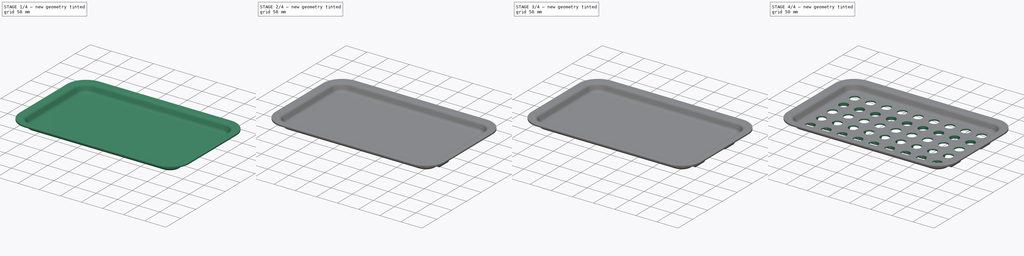
[diagram: build sequence overview — one tinted view per stage of 4, left to right]
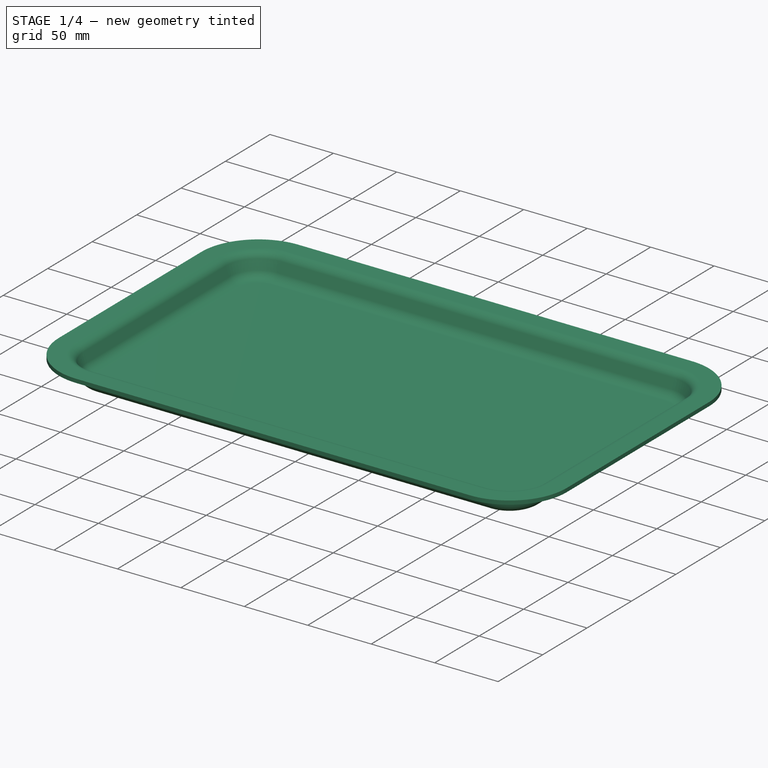
[diagram: stage 1 of 4 — iso view after this stage's code; geometry added in this stage tinted green]
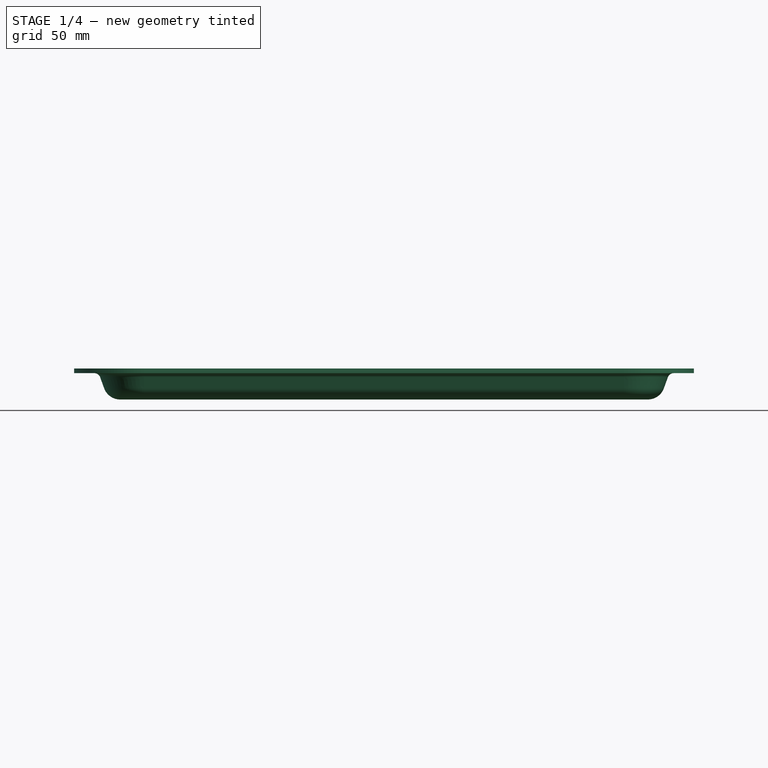
[diagram: stage 1 of 4 — front view after this stage's code; geometry added in this stage tinted green]
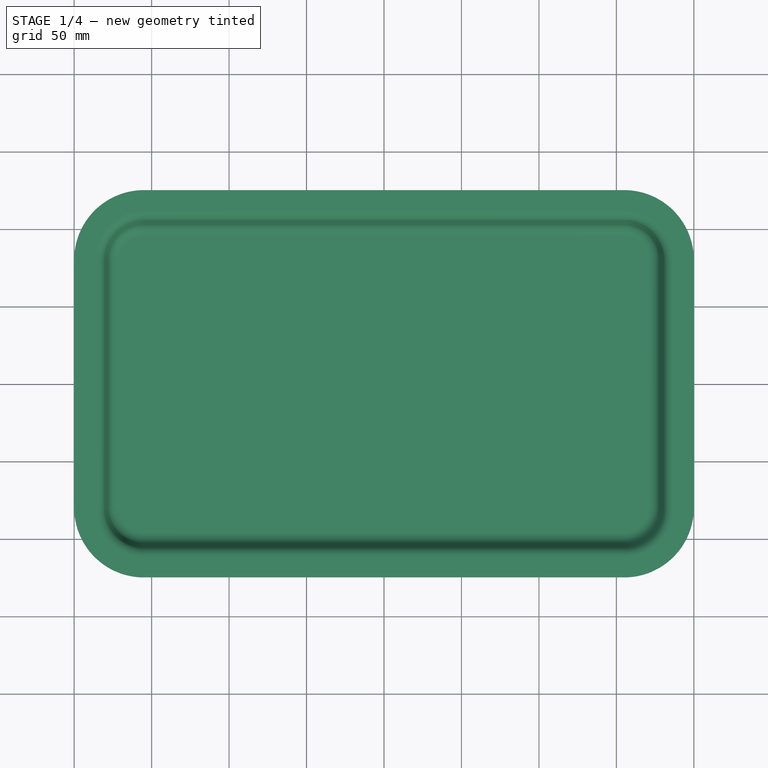
[diagram: stage 1 of 4 — top view after this stage's code; geometry added in this stage tinted green]
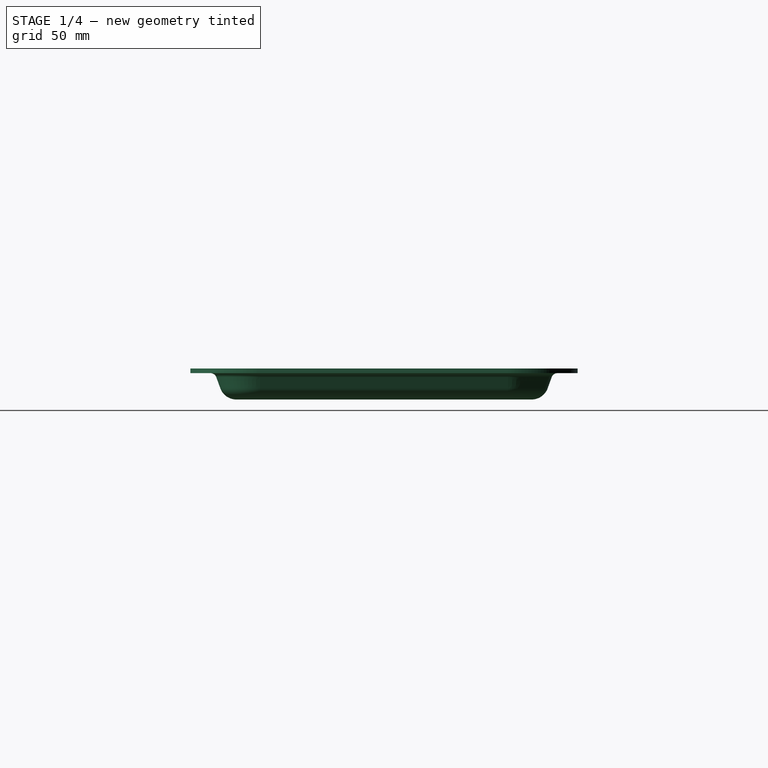
[diagram: stage 1 of 4 — right view after this stage's code; geometry added in this stage tinted green]
FCSTD DOCUMENT  (FreeCAD 1.1R41905 (Git))
Label: 24-SPO-52-PERF_TRAY
License: Creative Commons Attribution-NonCommercial-ShareAlike 4.0
LicenseURL: https://creativecommons.org/licenses/by-nc-sa/4.0/
objects: PartDesign::Pad×5, Sketcher::SketchObject×4, PartDesign::Mirrored×2, PartDesign::MultiTransform×2, PartDesign::LinearPattern×2, App::Point×1, PartDesign::AdditivePipe×1, App::TextDocument×1, PartDesign::Pocket×1, PartDesign::Body×1
note: 42 computed .brp shape members not serialized (recipe doc carries the construction recipe); baked Part::Feature solids carry a one-line shape summary decoded from their .brp

FEATURE [App::Point] Origin001  label="Origine"
  Role = Origin
FEATURE [Sketcher::SketchObject] Sketch  label="Contour"
  ArcFitTolerance = 1e-06
  AttachmentSupport = -> [Origin]
  ExternalTypes = [0]
  FullyConstrained = true
  MakeInternals = false
  MapMode = 5
  sketch-geometry (10):
    g0: LineSegment StartX=-200 StartY=80 StartZ=0 EndX=-200 EndY=-80 EndZ=0
    g1: LineSegment StartX=-155 StartY=-125 StartZ=0 EndX=155 EndY=-125 EndZ=0
    g2: LineSegment StartX=200 StartY=-80 StartZ=0 EndX=200 EndY=80 EndZ=0
    g3: LineSegment StartX=155 StartY=125 StartZ=0 EndX=-155 EndY=125 EndZ=0
    g4: ArcOfCircle CenterX=-155 CenterY=80 CenterZ=0 NormalX=0 NormalY=0 NormalZ=1 AngleXU=0 Radius=45 StartAngle=1.5708 EndAngle=3.14159
    g5: ArcOfCircle CenterX=-155 CenterY=-80 CenterZ=0 NormalX=0 NormalY=0 NormalZ=1 AngleXU=0 Radius=45 StartAngle=3.14159 EndAngle=4.71239
    g6: ArcOfCircle CenterX=155 CenterY=-80 CenterZ=0 NormalX=0 NormalY=0 NormalZ=1 AngleXU=0 Radius=45 StartAngle=4.71239 EndAngle=6.28319
    g7: ArcOfCircle CenterX=155 CenterY=80 CenterZ=0 NormalX=0 NormalY=0 NormalZ=1 AngleXU=0 Radius=45 StartAngle=0 EndAngle=1.5708
    g8: GeomPoint [constr] X=-200 Y=125 Z=0
    g9: GeomPoint [constr] X=200 Y=-125 Z=0
  constraints (23):
    c: Tangent(g0,g4) = -1.5708
    c: Tangent(g0,g5) = -1.5708
    c: Tangent(g1,g5) = -1.5708
    c: Tangent(g1,g6) = -1.5708
    c: Tangent(g2,g6) = -1.5708
    c: Tangent(g2,g7) = -1.5708
    c: Tangent(g3,g7) = -1.5708
    c: Tangent(g3,g4) = -1.5708
    c: Vertical(g0)
    c: Vertical(g2)
    c: Horizontal(g1)
    c: Horizontal(g3)
    c: Equal(g4,g5)
    c: Equal(g5,g6)
    c: Equal(g6,g7)
    c: PointOnObject(g8,g0)
    c: PointOnObject(g8,g3)
    c: PointOnObject(g9,g1)
    c: PointOnObject(g9,g2)
    c: Distance(g0,g2) = 400
    c: Distance(g1,g3) = 250
    c: Radius(g4) = 45
    c: Symmetric(g4,g6,g-1)
FEATURE [Sketcher::SketchObject] Sketch001  label="Profil"
  ArcFitTolerance = 1e-06
  AttachmentSupport = -> [Origin]
  ExternalGeometry = -> [Sketch]
  ExternalTypes = [0]
  FullyConstrained = true
  MakeInternals = false
  MapMode = 5
  Placement = pos=(0,0,0) rot=(1,0,0;1.5708rad)
  sketch-geometry (10):
    g0: LineSegment StartX=200 StartY=0 StartZ=0 EndX=187 EndY=0 EndZ=0
    g1: ArcOfCircle CenterX=187 CenterY=-7 CenterZ=0 NormalX=0 NormalY=0 NormalZ=1 AngleXU=0 Radius=7 StartAngle=1.5708 EndAngle=2.79253
    g2: LineSegment StartX=180.422 StartY=-4.60586 StartZ=0 EndX=177.827 EndY=-11.7362 EndZ=0
    g3: ArcOfCircle CenterX=170.309 CenterY=-9 CenterZ=0 NormalX=0 NormalY=0 NormalZ=1 AngleXU=0 Radius=8 StartAngle=4.71239 EndAngle=5.93412
    g4: LineSegment StartX=170.309 StartY=-17 StartZ=0 EndX=170.309 EndY=-20 EndZ=0
    g5: ArcOfCircle CenterX=170.309 CenterY=-9 CenterZ=0 NormalX=0 NormalY=0 NormalZ=1 AngleXU=0 Radius=11 StartAngle=4.71239 EndAngle=5.93412
    g6: LineSegment StartX=180.646 StartY=-12.7622 StartZ=0 EndX=183.241 EndY=-5.63192 EndZ=0
    g7: ArcOfCircle CenterX=187 CenterY=-7 CenterZ=0 NormalX=0 NormalY=0 NormalZ=1 AngleXU=0 Radius=4 StartAngle=1.5708 EndAngle=2.79253
    g8: LineSegment StartX=187 StartY=-3 StartZ=0 EndX=200 EndY=-3 EndZ=0
    g9: LineSegment StartX=200 StartY=-3 StartZ=0 EndX=200 EndY=0 EndZ=0
  constraints (24):
    c: Coincident(g0,g-3)
    c: Horizontal(g0)
    c: Tangent(g0,g1) = -1.5708
    c: Tangent(g1,g2) = -1.5708
    c: Tangent(g2,g3) = 1.5708
    c: Coincident(g3,g4)
    c: Perpendicular(g4,g5) = 1.5708
    c: Tangent(g5,g6) = -1.5708
    c: Tangent(g6,g7) = 1.5708
    c: Horizontal(g8)
    c: Coincident(g8,g9)
    c: Coincident(g9,g0)
    c: Tangent(g7,g8) = 1.5708
    c: Coincident(g3,g5)
    c: Coincident(g1,g7)
    c: Vertical(g9)
    c: Distance(g9,g9) = 3
    c: Parallel(g6,g2)
    c: Distance(g0,g0) = 13
    c: DistanceY(g4,g-1) = 20
    c: Perpendicular(g-1,g4)
    c: Radius(g5) = 11
    c: Radius(g1) = 7
    c: Angle(g2,g-2) = 0.349066
FEATURE [PartDesign::AdditivePipe] AdditivePipe
  AuxiliaryCurvilinear = true
  AuxiliarySpineTangent = false
  Binormal = (0,0,0)
  Mode = 0
  Profile = -> Sketch001
  Refine = true
  Spine = -> Sketch
  SpineTangent = false
  Suppressed = false
  Transformation = 0
  Transition = 0
FEATURE [PartDesign::Pad] Pad
  BaseFeature = -> AdditivePipe
  Direction = (0,0,1)
  Length = 3
  Length2 = 10
  Profile = -> AdditivePipe [Edge40,Edge140,Edge128,Edge58,Edge72,Edge86,Edge100,Edge114]
  Refine = true
  Reversed = true
  Suppressed = false
  Type = 0
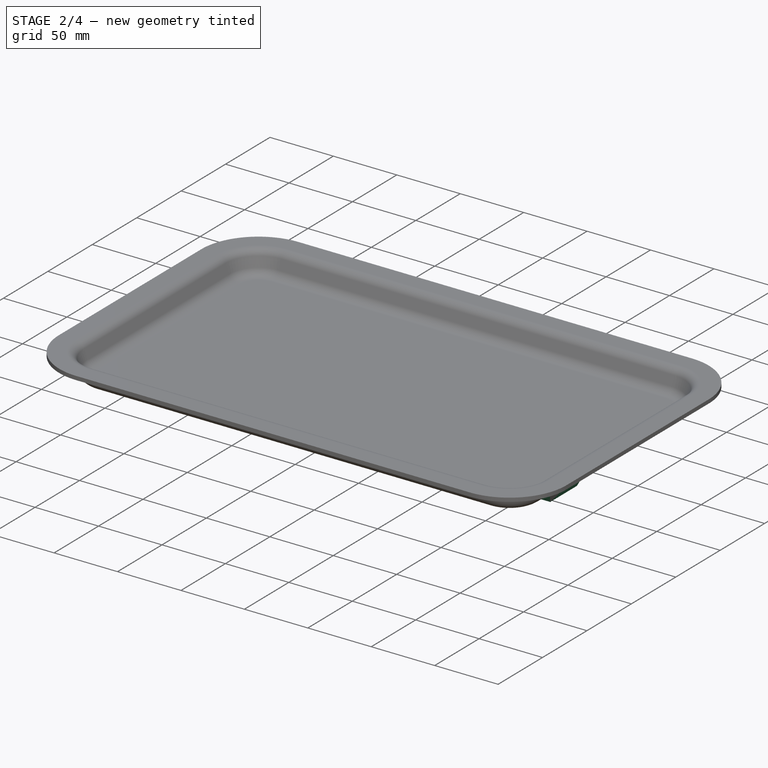
[diagram: stage 2 of 4 — iso view after this stage's code; geometry added in this stage tinted green]
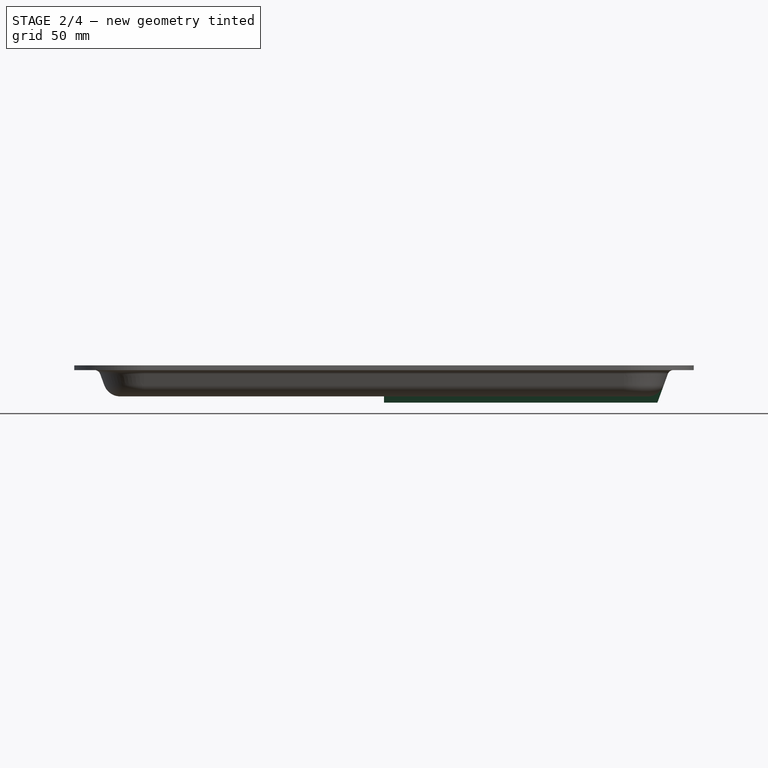
[diagram: stage 2 of 4 — front view after this stage's code; geometry added in this stage tinted green]
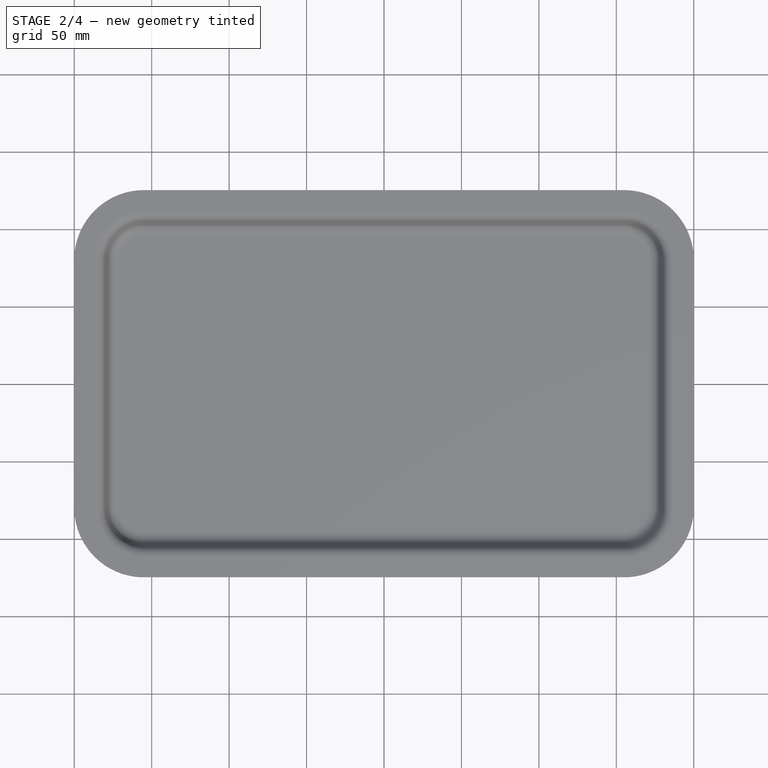
[diagram: stage 2 of 4 — top view after this stage's code; geometry added in this stage tinted green]
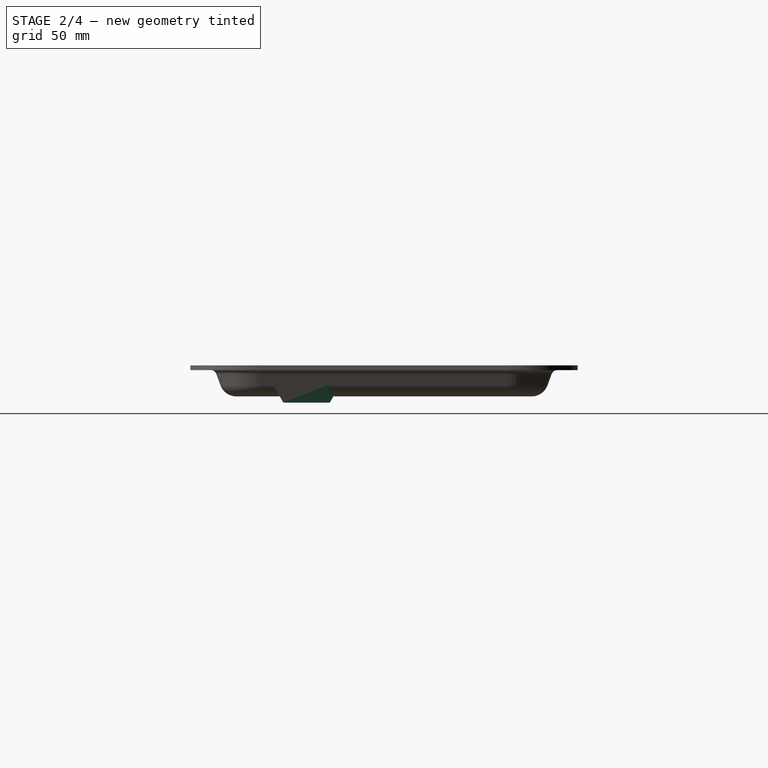
[diagram: stage 2 of 4 — right view after this stage's code; geometry added in this stage tinted green]
FEATURE [Sketcher::SketchObject] Sketch002
  ArcFitTolerance = 1e-06
  AttachmentSupport = -> [Origin]
  ExternalGeometry = -> [Pad]
  ExternalTypes = [0]
  FullyConstrained = true
  MakeInternals = false
  MapMode = 5
  Placement = pos=(0,0,0) rot=(0.57735,0.57735,0.57735;2.0944rad)
  sketch-geometry (5):
    g0: LineSegment StartX=-67.3094 StartY=-20 StartZ=0 EndX=-32.6906 EndY=-20 EndZ=0
    g1: LineSegment StartX=-32.6906 StartY=-20 StartZ=0 EndX=-35 EndY=-24 EndZ=0
    g2: LineSegment StartX=-35 StartY=-24 StartZ=0 EndX=-65 EndY=-24 EndZ=0
    g3: LineSegment StartX=-65 StartY=-24 StartZ=0 EndX=-67.3094 EndY=-20 EndZ=0
    g4: GeomPoint X=-50 Y=-24 Z=0
  constraints (13):
    c: Coincident(g0,g1)
    c: Coincident(g1,g2)
    c: Coincident(g2,g3)
    c: Coincident(g3,g0)
    c: Horizontal(g2)
    c: Angle(g-2,g3) = 0.523599
    c: Angle(g1,g-2) = 0.523599
    c: Symmetric(g2,g2,g4)
    c: Distance(g4,g-2) = 50
    c: Distance(g1,g-1) = 24
    c: DistanceX(g2,g2) = 30
    c: Horizontal(g0)
    c: PointOnObject(g0,g-3)
FEATURE [PartDesign::Pad] Pad001
  BaseFeature = -> Pad
  Direction = (1,0,0)
  Length = 10
  Length2 = 10
  Profile = -> Sketch002
  ReferenceAxis = -> Sketch002 [N_Axis]
  Refine = true
  Suppressed = false
  Type = 3
  UpToFace = -> Pad [Face31]
FEATURE [PartDesign::Pad] Pad002
  BaseFeature = -> Pad001
  Direction = (-0.300627,0.476871,-0.825965)
  Length = 3
  Length2 = 10
  Profile = -> Pad001 [Face60]
  ReferenceAxis = -> Pad001 [Edge150]
  Refine = true
  Reversed = true
  Suppressed = false
  Type = 5
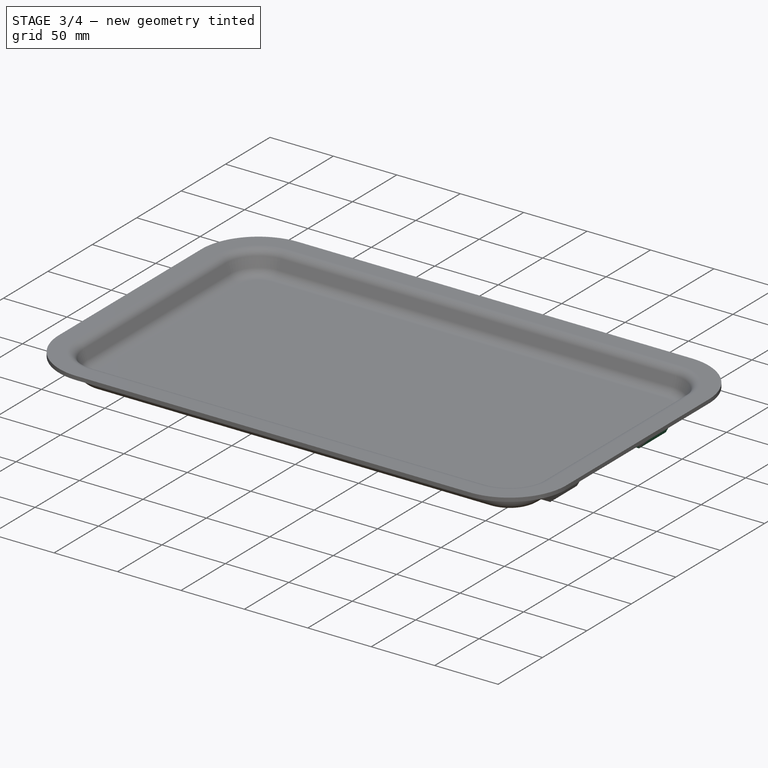
[diagram: stage 3 of 4 — iso view after this stage's code; geometry added in this stage tinted green]
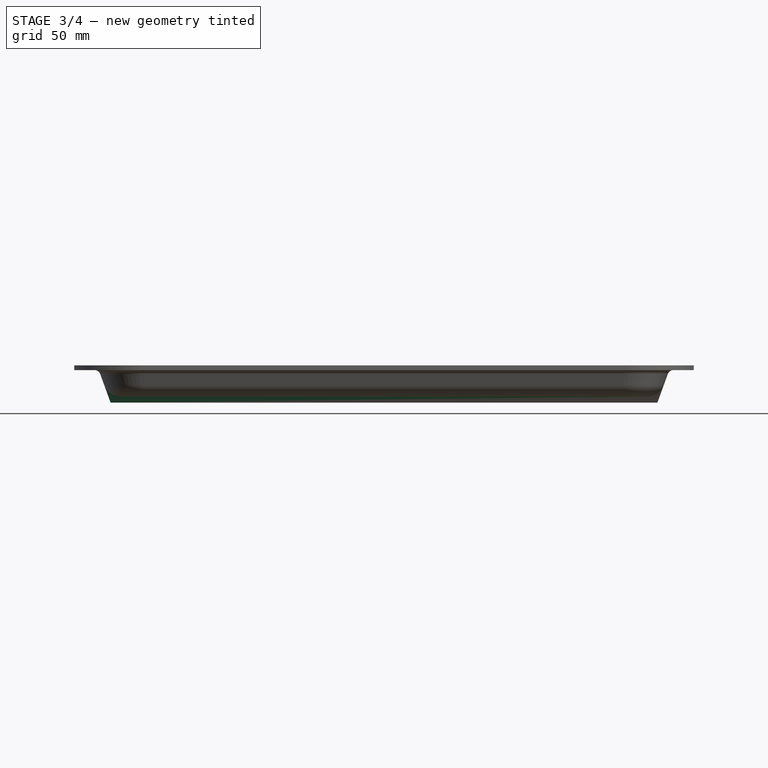
[diagram: stage 3 of 4 — front view after this stage's code; geometry added in this stage tinted green]
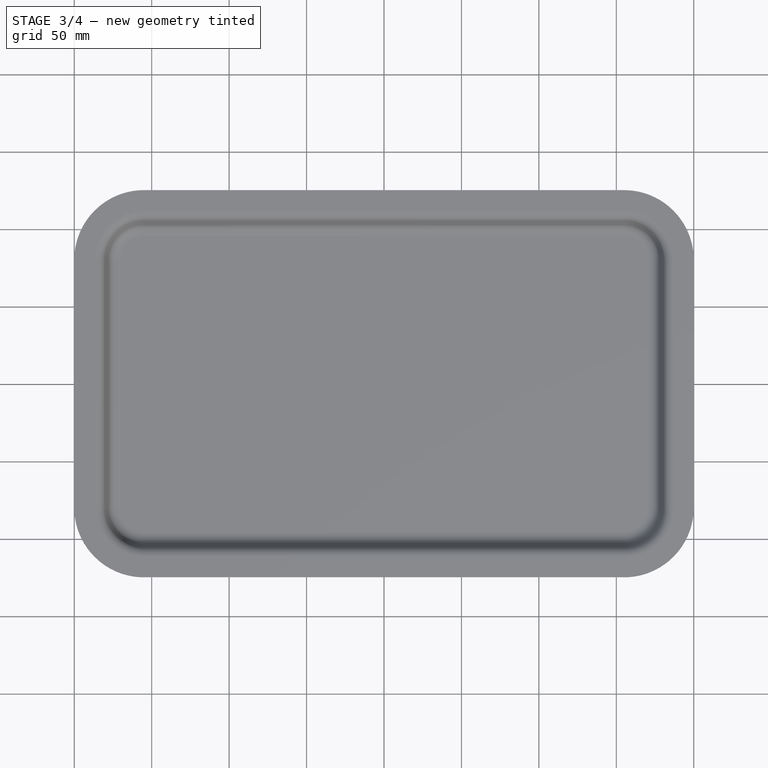
[diagram: stage 3 of 4 — top view after this stage's code; geometry added in this stage tinted green]
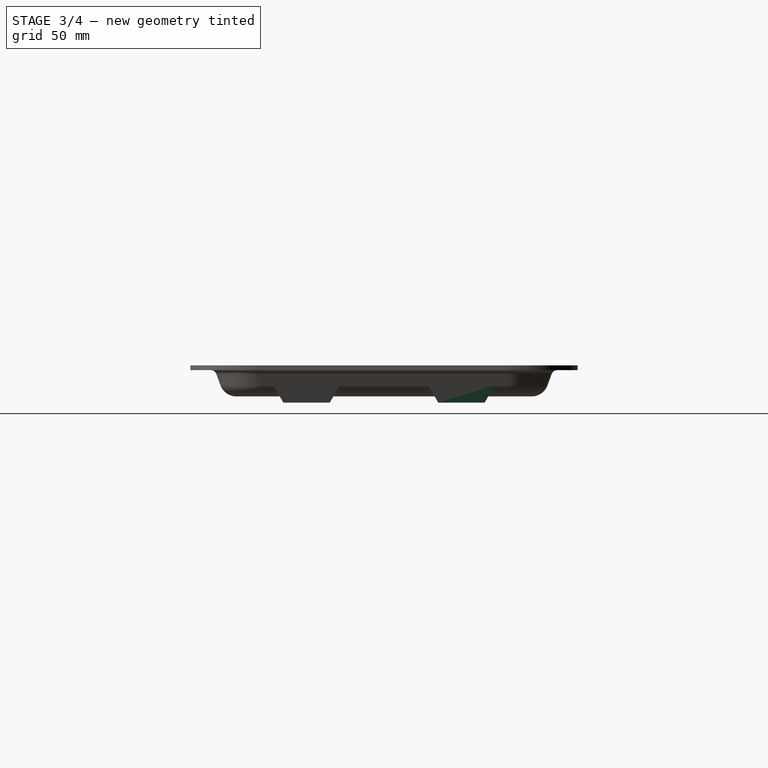
[diagram: stage 3 of 4 — right view after this stage's code; geometry added in this stage tinted green]
FEATURE [PartDesign::Pad] Pad003
  BaseFeature = -> Pad002
  Direction = (0,0.87,0.5)
  Length = 2
  Length2 = 10
  Profile = -> Pad002 [Face60]
  ReferenceAxis = -> Pad002 [Edge148]
  Refine = true
  Suppressed = false
  Type = 0
FEATURE [PartDesign::Pad] Pad004
  BaseFeature = -> Pad003
  Direction = (0,0.87,0.5)
  Length = 6
  Length2 = 10
  Profile = -> Pad003 [Face1]
  ReferenceAxis = -> Pad003 [Edge154]
  Refine = true
  Suppressed = false
  Type = 0
FEATURE [PartDesign::Mirrored] Mirrored
  MirrorPlane = -> Sketch002 [V_Axis]
  Refine = true
  Suppressed = false
  TransformMode = 0
FEATURE [PartDesign::Mirrored] Mirrored001
  MirrorPlane = -> YZ_Plane
  Refine = true
  Suppressed = false
  TransformMode = 0
FEATURE [PartDesign::MultiTransform] MultiTransform
  BaseFeature = -> Pad004
  Originals = -> [Pad001,Pad002,Pad003,Pad004]
  Refine = true
  Suppressed = false
  TransformMode = 0
  Transformations = -> [Mirrored,Mirrored001]
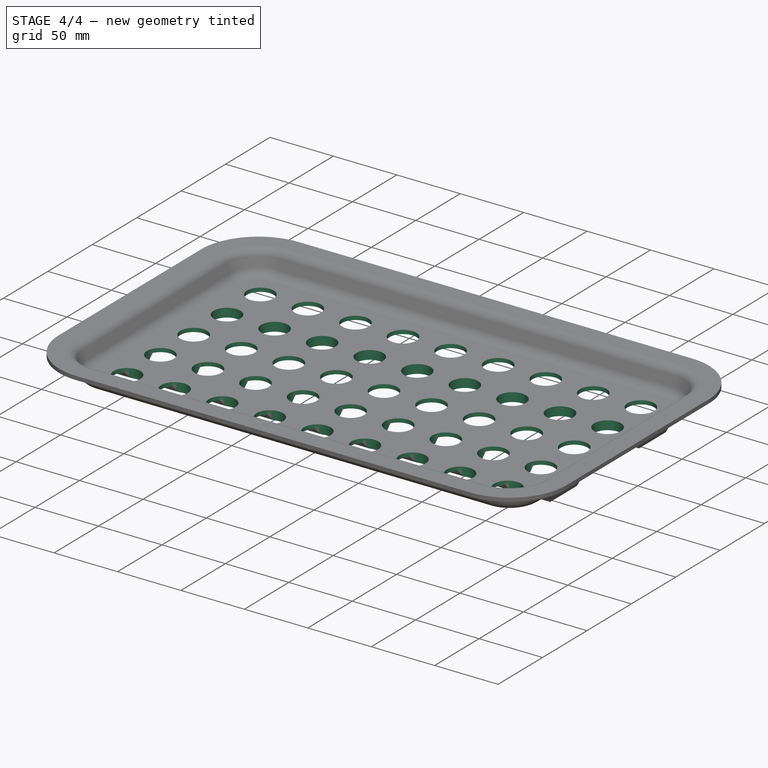
[diagram: stage 4 of 4 — iso view after this stage's code; geometry added in this stage tinted green]
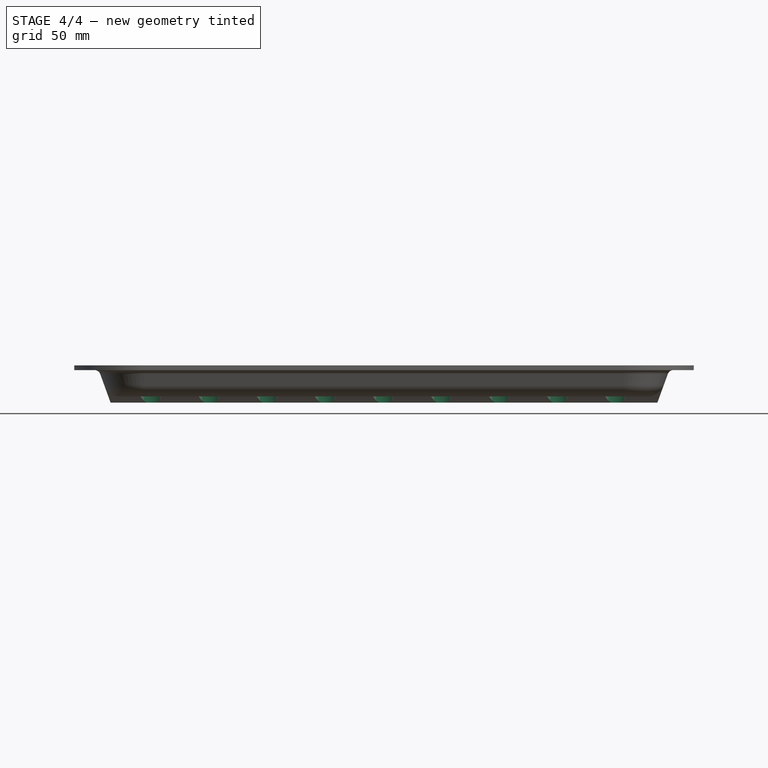
[diagram: stage 4 of 4 — front view after this stage's code; geometry added in this stage tinted green]
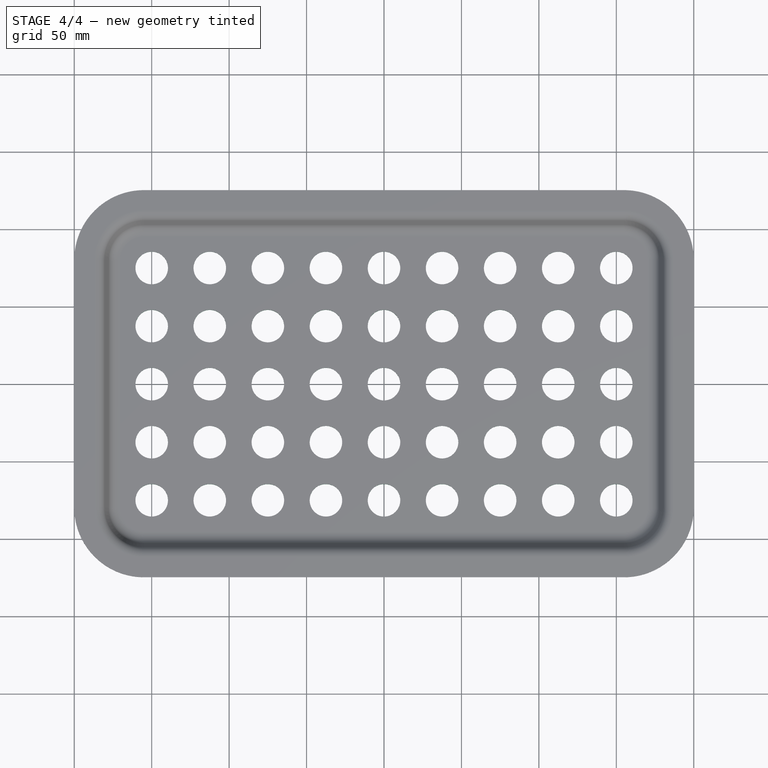
[diagram: stage 4 of 4 — top view after this stage's code; geometry added in this stage tinted green]
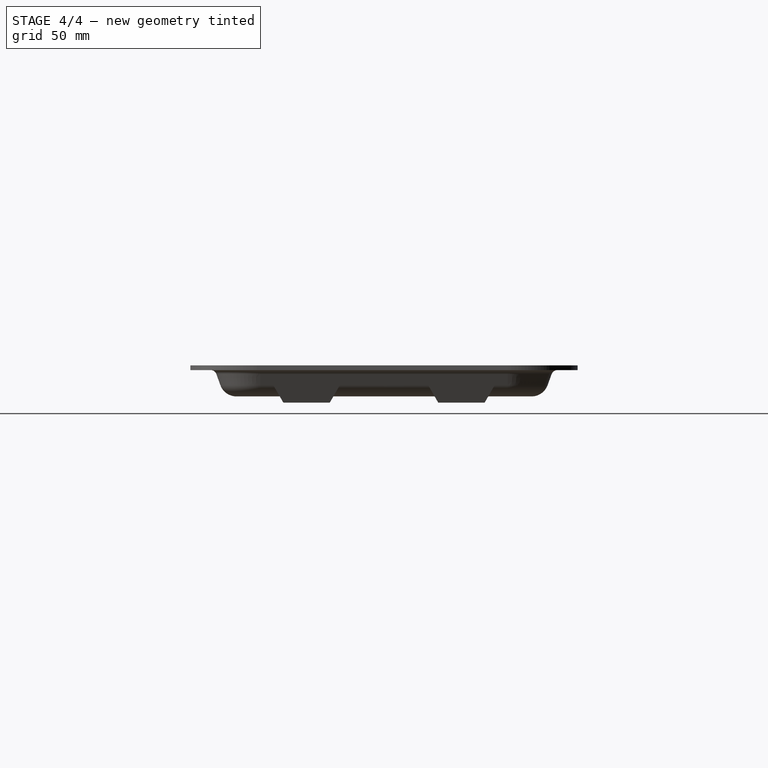
[diagram: stage 4 of 4 — right view after this stage's code; geometry added in this stage tinted green]
FEATURE [App::TextDocument] Text_document  label="README"
  Text = https://www.youtube.com/watch?v=R3AIRQz32rA\n\nPad en deux fois parce que le "to form" ne marche pas\n\n\nPlain Carbon Steel\n7800 kg/m3
FEATURE [Sketcher::SketchObject] Sketch003
  ArcFitTolerance = 1e-06
  AttachmentSupport = -> [Origin]
  ExternalGeometry = -> [Sketch]
  ExternalTypes = [0,0]
  FullyConstrained = true
  MakeInternals = false
  MapMode = 5
  sketch-geometry (1):
    g0: Circle CenterX=150 CenterY=-75 CenterZ=0 NormalX=0 NormalY=0 NormalZ=1 AngleXU=0 Radius=10.5
  constraints (3):
    c: Diameter(g0) = 21
    c: DistanceX(g0,g-4) = 50
    c: Distance(g0,g-3) = 50
FEATURE [PartDesign::Pocket] Pocket
  BaseFeature = -> MultiTransform
  Direction = (0,0,-1)
  Length = 5
  Length2 = 5
  Midplane = true
  Profile = -> Sketch003
  ReferenceAxis = -> Sketch003 [N_Axis]
  Refine = true
  Suppressed = false
  Type = 1
FEATURE [PartDesign::LinearPattern] LinearPattern
  Direction = -> X_Axis
  Length = 300
  Mode = 0
  Occurrences = 9
  Offset = 37.5
  Refine = true
  Reversed = true
  Suppressed = false
  TransformMode = 0
FEATURE [PartDesign::LinearPattern] LinearPattern001
  Direction = -> Y_Axis
  Length = 150
  Mode = 0
  Occurrences = 5
  Offset = 37.5
  Refine = true
  Suppressed = false
  TransformMode = 0
FEATURE [PartDesign::MultiTransform] MultiTransform001
  BaseFeature = -> Pocket
  Originals = -> [Pocket]
  Refine = true
  Suppressed = false
  TransformMode = 0
  Transformations = -> [LinearPattern,LinearPattern001]
FEATURE [PartDesign::Body] Body
  AllowCompound = false
  Group = -> [Sketch,Sketch001,AdditivePipe,Pad,Sketch002,Pad001,Pad002,Pad003,Pad004,MultiTransform,Mirrored,Mirrored001,Sketch003,Pocket,MultiTransform001,LinearPattern,LinearPattern001]
  Origin = -> Origin
  Tip = -> MultiTransform001
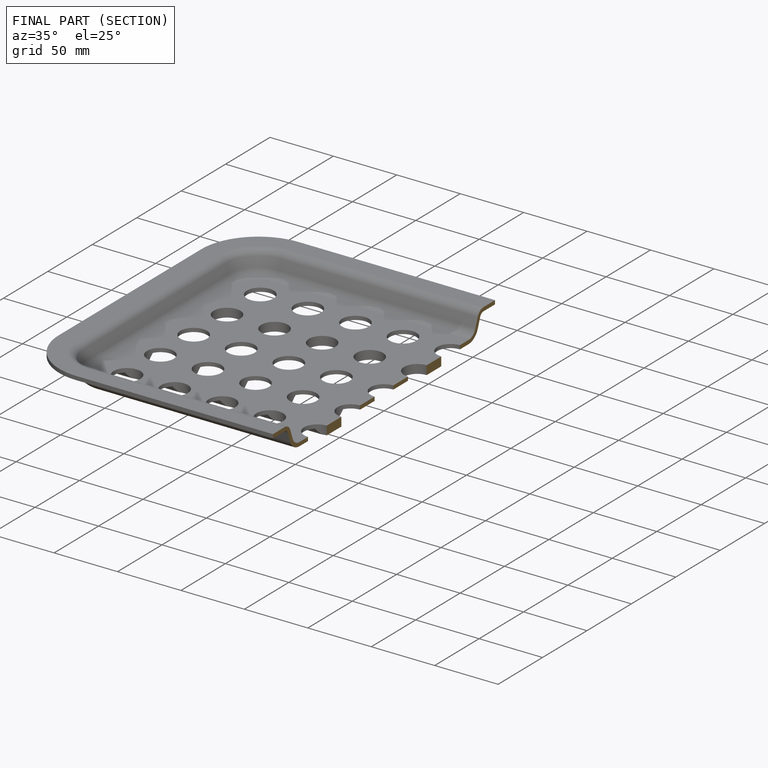
[diagram: finished part — half-section view (interior)]
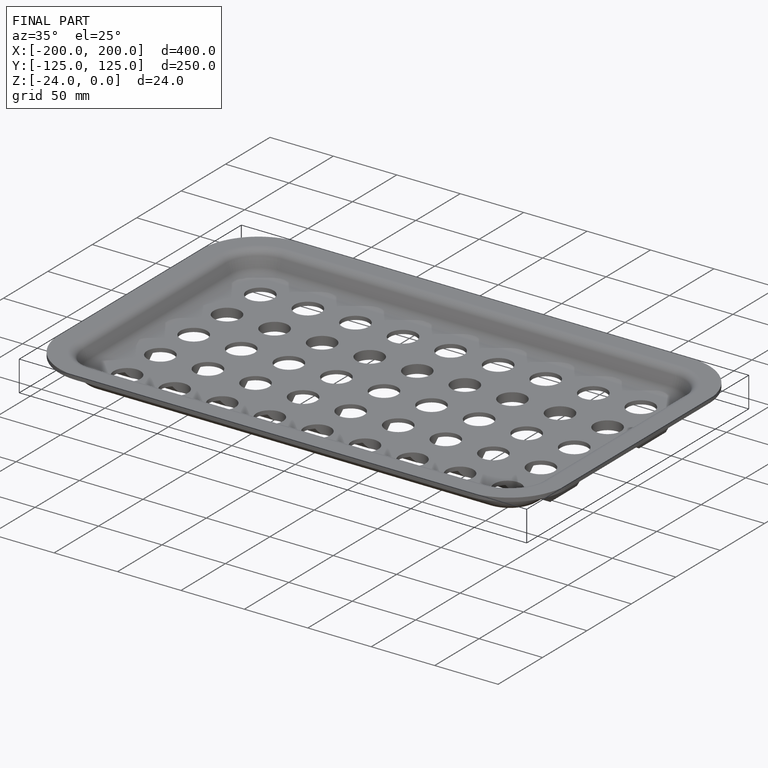
[diagram: finished part — iso view with bounding-box wireframe]
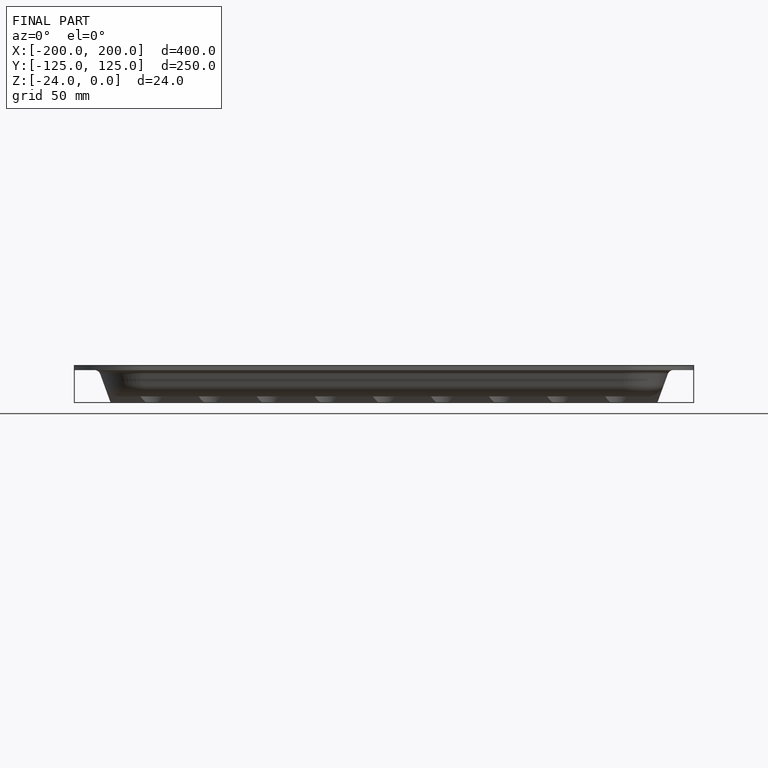
[diagram: finished part — front view with bounding-box wireframe]
